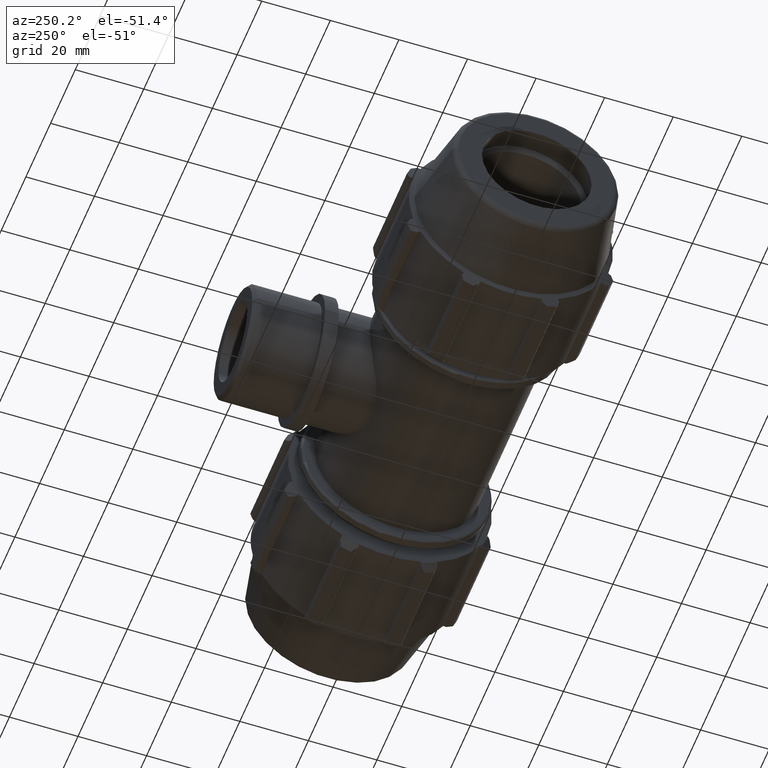
[diagram: clean part render]
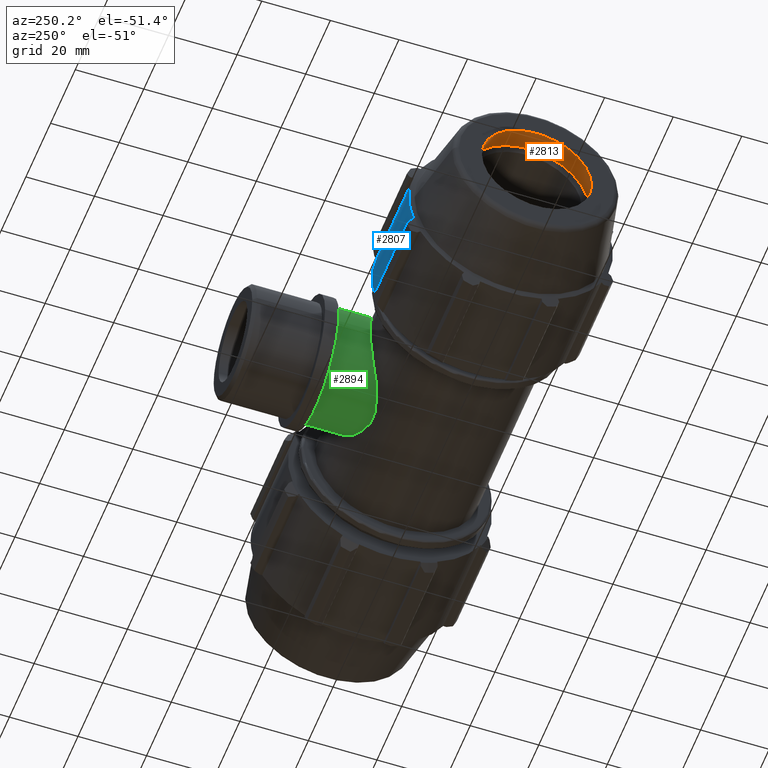
[diagram: same view with three faces highlighted in distinct colors, each labeled with its STEP entity id]
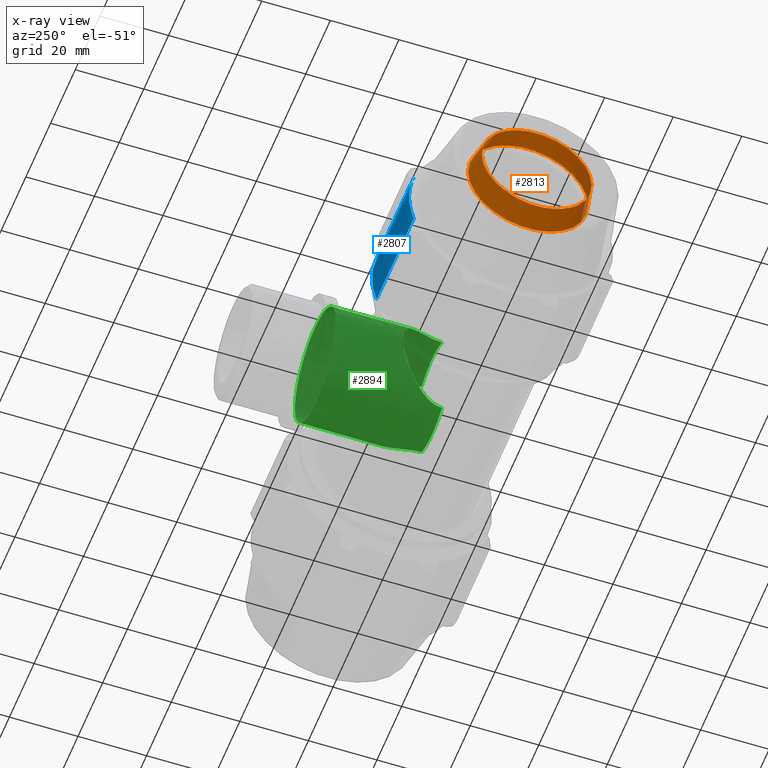
[diagram: x-ray of the same camera — body ghosted, the three highlighted faces saturated]
A machine part, auxiliary view with three faces highlighted in distinct colors.
The next image is the same camera in x-ray (body ghosted, the three faces saturated) — at least one of them is partly hidden behind the body in this view.
Their STEP definitions:

[orange] entity #2813 — the highlighted conical surface has half-angle 12 deg.
#194=CIRCLE('',#2959,17.505608978496);
#220=CIRCLE('',#3026,16.);
#686=CONICAL_SURFACE('',#3030,16.752804489248,12.);
#716=FACE_BOUND('',#993,.T.);
#818=FACE_OUTER_BOUND('',#992,.T.);
#992=EDGE_LOOP('',(#2133));
#993=EDGE_LOOP('',(#2134));
#1207=VERTEX_POINT('',#4318);
#1241=VERTEX_POINT('',#4472);
#1502=EDGE_CURVE('',#1207,#1207,#194,.T.);
#1567=EDGE_CURVE('',#1241,#1241,#220,.T.);
#2133=ORIENTED_EDGE('',*,*,#1502,.T.);
#2134=ORIENTED_EDGE('',*,*,#1567,.F.);
#2813=ADVANCED_FACE('',(#818,#716),#686,.F.);
#2959=AXIS2_PLACEMENT_3D('',#4319,#3361,#3362);
#3026=AXIS2_PLACEMENT_3D('',#4473,#3527,#3528);
#3030=AXIS2_PLACEMENT_3D('',#4478,#3535,#3536);
#3361=DIRECTION('center_axis',(1.,-4.75609664075873E-16,0.));
#3362=DIRECTION('ref_axis',(0.,0.,-1.));
#3527=DIRECTION('center_axis',(1.,-4.75609664075873E-16,0.));
#3528=DIRECTION('ref_axis',(0.,0.,-1.));
#3535=DIRECTION('center_axis',(1.,-4.75609664075873E-16,0.));
#3536=DIRECTION('ref_axis',(0.,1.,0.));
#4318=CARTESIAN_POINT('',(-77.9166666666667,17.505608978496,0.));
#4319=CARTESIAN_POINT('Origin',(-77.9166666666667,3.70579196592451E-14,
0.));
#4472=CARTESIAN_POINT('',(-85.,16.,0.));
#4473=CARTESIAN_POINT('Origin',(-85.,4.04268214464492E-14,0.));
#4478=CARTESIAN_POINT('Origin',(-81.4583333333333,3.87423705528472E-14,
0.));

[blue] entity #2807 — the highlighted cylindrical surface (partial cylindrical patch) has radius 29.76 mm, axis along (1, -0, 0).
#178=CIRCLE('',#2917,29.76);
#210=CIRCLE('',#2977,29.76);
#337=LINE('',#4247,#531);
#382=LINE('',#4463,#576);
#531=VECTOR('',#3317,30.1373643440812);
#576=VECTOR('',#3514,30.1373643440812);
#812=FACE_OUTER_BOUND('',#981,.T.);
#981=EDGE_LOOP('',(#2119,#2120,#2121,#2122));
#1141=VERTEX_POINT('',#4089);
#1142=VERTEX_POINT('',#4091);
#1188=VERTEX_POINT('',#4245);
#1231=VERTEX_POINT('',#4389);
#1412=EDGE_CURVE('',#1141,#1142,#178,.T.);
#1475=EDGE_CURVE('',#1141,#1188,#337,.T.);
#1534=EDGE_CURVE('',#1231,#1188,#210,.T.);
#1564=EDGE_CURVE('',#1142,#1231,#382,.T.);
#2119=ORIENTED_EDGE('',*,*,#1534,.F.);
#2120=ORIENTED_EDGE('',*,*,#1564,.F.);
#2121=ORIENTED_EDGE('',*,*,#1412,.F.);
#2122=ORIENTED_EDGE('',*,*,#1475,.T.);
#2553=CYLINDRICAL_SURFACE('',#3020,29.76);
#2807=ADVANCED_FACE('',(#812),#2553,.T.);
#2917=AXIS2_PLACEMENT_3D('',#4092,#3226,#3227);
#2977=AXIS2_PLACEMENT_3D('',#4391,#3406,#3407);
#3020=AXIS2_PLACEMENT_3D('',#4464,#3515,#3516);
#3226=DIRECTION('center_axis',(1.,-4.75609664075873E-16,0.));
#3227=DIRECTION('ref_axis',(-4.52027734295035E-16,-0.953716950748227,-0.300705799504273));
#3317=DIRECTION('',(-1.,4.73964244779756E-16,0.));
#3406=DIRECTION('center_axis',(-1.,4.73964244779756E-16,0.));
#3407=DIRECTION('ref_axis',(-4.52027734295035E-16,-0.953716950748227,-0.300705799504273));
#3514=DIRECTION('',(-1.,4.73964244779756E-16,0.));
#3515=DIRECTION('center_axis',(1.,-4.73964244779756E-16,0.));
#3516=DIRECTION('ref_axis',(-4.52027734295035E-16,-0.953716950748227,-0.300705799504273));
#4089=CARTESIAN_POINT('',(-34.,28.3826164542673,-8.94900459324717));
#4091=CARTESIAN_POINT('',(-34.,28.3826164542673,8.94900459324717));
#4092=CARTESIAN_POINT('Origin',(-34.,1.61707285785797E-14,0.));
#4245=CARTESIAN_POINT('',(-64.1373643440812,28.3826164542673,-8.94900459324717));
#4247=CARTESIAN_POINT('',(-34.,28.3826164542673,-8.94900459324717));
#4389=CARTESIAN_POINT('',(-64.1373643440812,28.3826164542673,8.94900459324717));
#4391=CARTESIAN_POINT('Origin',(-64.1373643440812,3.04547617095745E-14,
0.));
#4463=CARTESIAN_POINT('',(-34.,28.3826164542673,8.94900459324717));
#4464=CARTESIAN_POINT('Origin',(-34.,1.61707285785797E-14,0.));

[green] entity #2894 — the highlighted cylindrical surface (bore or boss wall) has radius 16.6245 mm, axis along (-0, 1, 0).
#278=CIRCLE('',#3163,16.6245);
#279=CIRCLE('',#3165,16.6245);
#284=CIRCLE('',#3174,16.6245);
#741=FACE_BOUND('',#1099,.T.);
#899=FACE_OUTER_BOUND('',#1098,.T.);
#1098=EDGE_LOOP('',(#2522,#2523,#2524,#2525));
#1099=EDGE_LOOP('',(#2526));
#1110=B_SPLINE_CURVE_WITH_KNOTS('',3,(#4934,#4935,#4936,#4937,#4938,#4939,
#4940,#4941,#4942,#4943,#4944,#4945,#4946,#4947,#4948,#4949,#4950,#4951,
#4952,#4953,#4954,#4955,#4956,#4957,#4958,#4959,#4960,#4961,#4962,#4963),
 .UNSPECIFIED.,.F.,.F.,(4,2,2,2,2,2,2,2,2,2,2,2,2,2,4),(-4.7608249255122,
-4.45510667039197,-4.14938841527174,-3.84367016015151,-3.53795190503128,
-2.95918218389369,-2.6697973233249,-2.3804124627561,-2.0910276021873,-1.80164274161851,
-1.22287302048092,-0.917154765360687,-0.611436510240457,-0.305718255120228,
0.),.UNSPECIFIED.);
#1111=B_SPLINE_CURVE_WITH_KNOTS('',3,(#4966,#4967,#4968,#4969,#4970,#4971,
#4972,#4973,#4974,#4975,#4976,#4977,#4978,#4979,#4980,#4981,#4982,#4983,
#4984,#4985,#4986,#4987,#4988,#4989,#4990,#4991,#4992,#4993,#4994,#4995),
 .UNSPECIFIED.,.F.,.F.,(4,2,2,2,2,2,2,2,2,2,2,2,2,2,4),(0.,0.305718255120229,
0.611436510240459,0.917154765360688,1.22287302048092,1.80164274161851,2.0910276021873,
2.3804124627561,2.6697973233249,2.95918218389369,3.53795190503128,3.84367016015151,
4.14938841527174,4.45510667039197,4.7608249255122),.UNSPECIFIED.);
#1371=VERTEX_POINT('',#4930);
#1372=VERTEX_POINT('',#4931);
#1373=VERTEX_POINT('',#4933);
#1374=VERTEX_POINT('',#4964);
#1380=VERTEX_POINT('',#5063);
#1754=EDGE_CURVE('',#1373,#1371,#1110,.T.);
#1756=EDGE_CURVE('',#1372,#1374,#1111,.T.);
#1758=EDGE_CURVE('',#1371,#1372,#278,.T.);
#1759=EDGE_CURVE('',#1374,#1373,#279,.T.);
#1764=EDGE_CURVE('',#1380,#1380,#284,.T.);
#2522=ORIENTED_EDGE('',*,*,#1756,.T.);
#2523=ORIENTED_EDGE('',*,*,#1759,.T.);
#2524=ORIENTED_EDGE('',*,*,#1754,.T.);
#2525=ORIENTED_EDGE('',*,*,#1758,.T.);
#2526=ORIENTED_EDGE('',*,*,#1764,.F.);
#2578=CYLINDRICAL_SURFACE('',#3173,16.6245);
#2894=ADVANCED_FACE('',(#899,#741),#2578,.T.);
#3163=AXIS2_PLACEMENT_3D('',#5048,#3899,#3900);
#3165=AXIS2_PLACEMENT_3D('',#5050,#3903,#3904);
#3173=AXIS2_PLACEMENT_3D('',#5062,#3919,#3920);
#3174=AXIS2_PLACEMENT_3D('',#5064,#3921,#3922);
#3899=DIRECTION('center_axis',(-1.22464679914735E-16,1.,0.));
#3900=DIRECTION('ref_axis',(1.,1.22464679914735E-16,0.));
#3903=DIRECTION('center_axis',(-1.22464679914735E-16,1.,0.));
#3904=DIRECTION('ref_axis',(1.,1.22464679914735E-16,0.));
#3919=DIRECTION('center_axis',(-1.22464679914735E-16,1.,0.));
#3920=DIRECTION('ref_axis',(-1.,0.,0.));
#3921=DIRECTION('center_axis',(-1.22464679914735E-16,1.,0.));
#3922=DIRECTION('ref_axis',(1.,1.22464679914735E-16,0.));
#4930=CARTESIAN_POINT('',(8.30746653619506,1.0173712302575E-15,-14.4));
#4931=CARTESIAN_POINT('',(-8.30746653619506,-1.0173712302575E-15,-14.4));
#4933=CARTESIAN_POINT('',(8.30746653619506,1.0173712302575E-15,14.4));
#4934=CARTESIAN_POINT('Ctrl Pts',(8.30746653619505,6.93889390390723E-15,
14.4));
#4935=CARTESIAN_POINT('Ctrl Pts',(8.30746653619505,1.01906085040077,14.4));
#4936=CARTESIAN_POINT('Ctrl Pts',(8.49865345194732,2.00003978259366,14.2927988035215));
#4937=CARTESIAN_POINT('Ctrl Pts',(9.12682797804453,3.88227223216593,13.9000798249728));
#4938=CARTESIAN_POINT('Ctrl Pts',(9.56033194817273,4.78457831707497,13.6140431500826));
#4939=CARTESIAN_POINT('Ctrl Pts',(10.527282867136,6.50507482060317,12.8809324496777));
#4940=CARTESIAN_POINT('Ctrl Pts',(11.0606089151434,7.32262715891688,12.4332518698888));
#4941=CARTESIAN_POINT('Ctrl Pts',(12.1226787805664,8.84551520135596,11.4001526837612));
#4942=CARTESIAN_POINT('Ctrl Pts',(12.651652387245,9.55038769366612,10.8142876045064));
#4943=CARTESIAN_POINT('Ctrl Pts',(14.0683009271125,11.3787120668573,8.98596323131525));
#4944=CARTESIAN_POINT('Ctrl Pts',(14.9844869312952,12.4772822414716,7.44031328104985));
#4945=CARTESIAN_POINT('Ctrl Pts',(15.9454144624845,13.6118578300118,4.79557535422366));
#4946=CARTESIAN_POINT('Ctrl Pts',(16.1993653300837,13.9073879902578,3.86013387292251));
#4947=CARTESIAN_POINT('Ctrl Pts',(16.5389921536104,14.3015476459931,1.9446874223328));
#4948=CARTESIAN_POINT('Ctrl Pts',(16.6245,14.4,0.964616201895983));
#4949=CARTESIAN_POINT('Ctrl Pts',(16.6245,14.4,-0.964616201895989));
#4950=CARTESIAN_POINT('Ctrl Pts',(16.5389921536104,14.3015476459931,-1.94468742233281));
#4951=CARTESIAN_POINT('Ctrl Pts',(16.1993653300837,13.9073879902578,-3.86013387292252));
#4952=CARTESIAN_POINT('Ctrl Pts',(15.9454144624845,13.6118578300118,-4.79557535422366));
#4953=CARTESIAN_POINT('Ctrl Pts',(14.9844869312952,12.4772822414716,-7.44031328104986));
#4954=CARTESIAN_POINT('Ctrl Pts',(14.0683009271125,11.3787120668573,-8.98596323131526));
#4955=CARTESIAN_POINT('Ctrl Pts',(12.651652387245,9.55038769366612,-10.8142876045064));
#4956=CARTESIAN_POINT('Ctrl Pts',(12.1226787805664,8.84551520135595,-11.4001526837612));
#4957=CARTESIAN_POINT('Ctrl Pts',(11.0606089151434,7.32262715891688,-12.4332518698889));
#4958=CARTESIAN_POINT('Ctrl Pts',(10.527282867136,6.50507482060316,-12.8809324496777));
#4959=CARTESIAN_POINT('Ctrl Pts',(9.56033194817273,4.78457831707495,-13.6140431500826));
#4960=CARTESIAN_POINT('Ctrl Pts',(9.12682797804452,3.88227223216592,-13.9000798249728));
#4961=CARTESIAN_POINT('Ctrl Pts',(8.49865345194732,2.00003978259365,-14.2927988035215));
#4962=CARTESIAN_POINT('Ctrl Pts',(8.30746653619505,1.01906085040077,-14.4));
#4963=CARTESIAN_POINT('Ctrl Pts',(8.30746653619505,6.66133814775094E-15,
-14.4));
#4964=CARTESIAN_POINT('',(-8.30746653619506,-1.0173712302575E-15,14.4));
#4966=CARTESIAN_POINT('Ctrl Pts',(-8.30746653619505,-4.44089209850063E-15,
-14.4));
#4967=CARTESIAN_POINT('Ctrl Pts',(-8.30746653619505,1.01906085040076,-14.4));
#4968=CARTESIAN_POINT('Ctrl Pts',(-8.49865345194732,2.00003978259365,-14.2927988035215));
#4969=CARTESIAN_POINT('Ctrl Pts',(-9.12682797804452,3.88227223216592,-13.9000798249728));
#4970=CARTESIAN_POINT('Ctrl Pts',(-9.56033194817273,4.78457831707496,-13.6140431500826));
#4971=CARTESIAN_POINT('Ctrl Pts',(-10.527282867136,6.50507482060316,-12.8809324496777));
#4972=CARTESIAN_POINT('Ctrl Pts',(-11.0606089151434,7.32262715891687,-12.4332518698888));
#4973=CARTESIAN_POINT('Ctrl Pts',(-12.1226787805664,8.84551520135594,-11.4001526837612));
#4974=CARTESIAN_POINT('Ctrl Pts',(-12.651652387245,9.5503876936661,-10.8142876045064));
#4975=CARTESIAN_POINT('Ctrl Pts',(-14.0683009271125,11.3787120668573,-8.98596323131526));
#4976=CARTESIAN_POINT('Ctrl Pts',(-14.9844869312952,12.4772822414716,-7.44031328104986));
#4977=CARTESIAN_POINT('Ctrl Pts',(-15.9454144624845,13.6118578300118,-4.79557535422366));
#4978=CARTESIAN_POINT('Ctrl Pts',(-16.1993653300837,13.9073879902578,-3.86013387292252));
#4979=CARTESIAN_POINT('Ctrl Pts',(-16.5389921536104,14.3015476459931,-1.94468742233281));
#4980=CARTESIAN_POINT('Ctrl Pts',(-16.6245,14.4,-0.964616201895989));
#4981=CARTESIAN_POINT('Ctrl Pts',(-16.6245,14.4,0.964616201895982));
#4982=CARTESIAN_POINT('Ctrl Pts',(-16.5389921536104,14.3015476459931,1.9446874223328));
#4983=CARTESIAN_POINT('Ctrl Pts',(-16.1993653300837,13.9073879902578,3.86013387292251));
#4984=CARTESIAN_POINT('Ctrl Pts',(-15.9454144624845,13.6118578300118,4.79557535422365));
#4985=CARTESIAN_POINT('Ctrl Pts',(-14.9844869312952,12.4772822414716,7.44031328104985));
#4986=CARTESIAN_POINT('Ctrl Pts',(-14.0683009271125,11.3787120668573,8.98596323131525));
#4987=CARTESIAN_POINT('Ctrl Pts',(-12.651652387245,9.55038769366612,10.8142876045064));
#4988=CARTESIAN_POINT('Ctrl Pts',(-12.1226787805664,8.84551520135595,11.4001526837612));
#4989=CARTESIAN_POINT('Ctrl Pts',(-11.0606089151434,7.32262715891688,12.4332518698888));
#4990=CARTESIAN_POINT('Ctrl Pts',(-10.527282867136,6.50507482060317,12.8809324496777));
#4991=CARTESIAN_POINT('Ctrl Pts',(-9.56033194817273,4.78457831707497,13.6140431500826));
#4992=CARTESIAN_POINT('Ctrl Pts',(-9.12682797804453,3.88227223216592,13.9000798249728));
#4993=CARTESIAN_POINT('Ctrl Pts',(-8.49865345194732,2.00003978259365,14.2927988035215));
#4994=CARTESIAN_POINT('Ctrl Pts',(-8.30746653619505,1.01906085040076,14.4));
#4995=CARTESIAN_POINT('Ctrl Pts',(-8.30746653619505,-3.88578058618805E-15,
14.4));
#5048=CARTESIAN_POINT('Origin',(-4.93038065763132E-31,0.,0.));
#5050=CARTESIAN_POINT('Origin',(-4.93038065763132E-31,0.,0.));
#5062=CARTESIAN_POINT('Origin',(-2.0818995585505E-15,17.,0.));
#5063=CARTESIAN_POINT('',(-16.6245,34.,0.));
#5064=CARTESIAN_POINT('Origin',(-4.163799117101E-15,34.,0.));